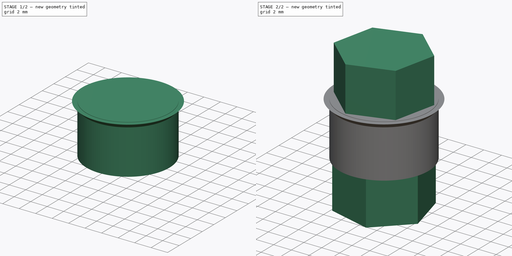
[diagram: build sequence overview — one tinted view per stage of 2, left to right]
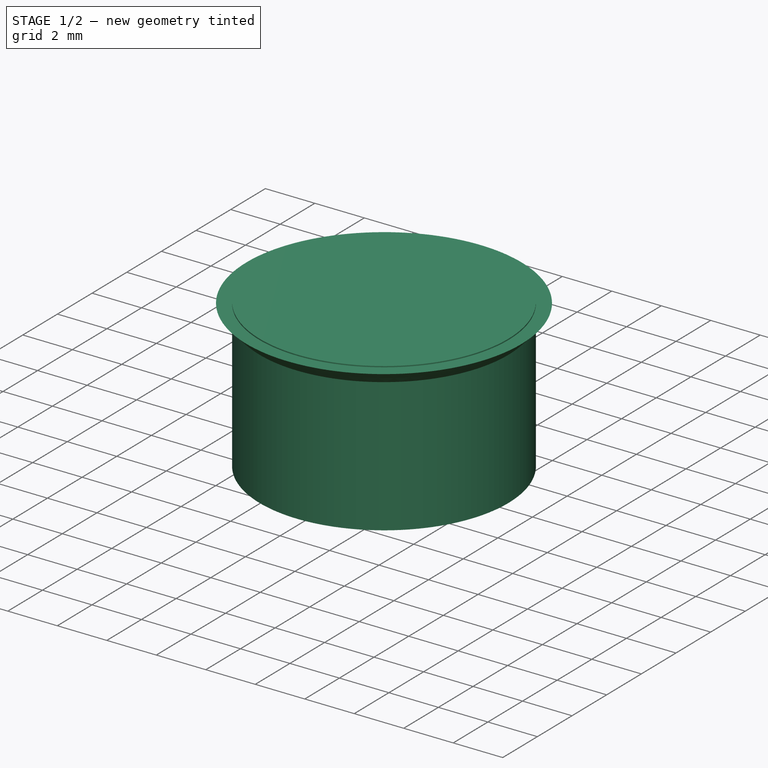
[diagram: stage 1 of 2 — iso view after this stage's code; geometry added in this stage tinted green]
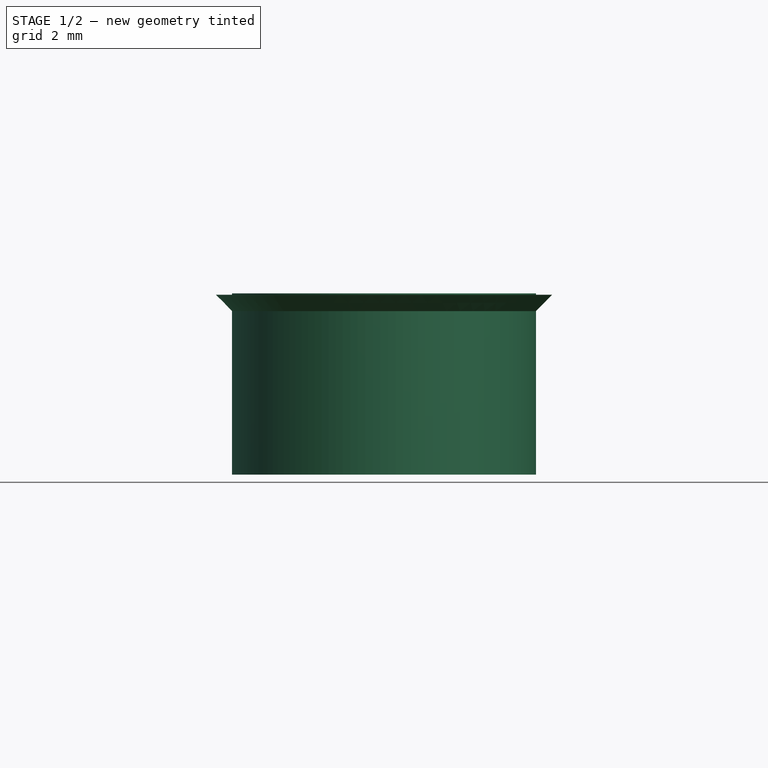
[diagram: stage 1 of 2 — front view after this stage's code; geometry added in this stage tinted green]
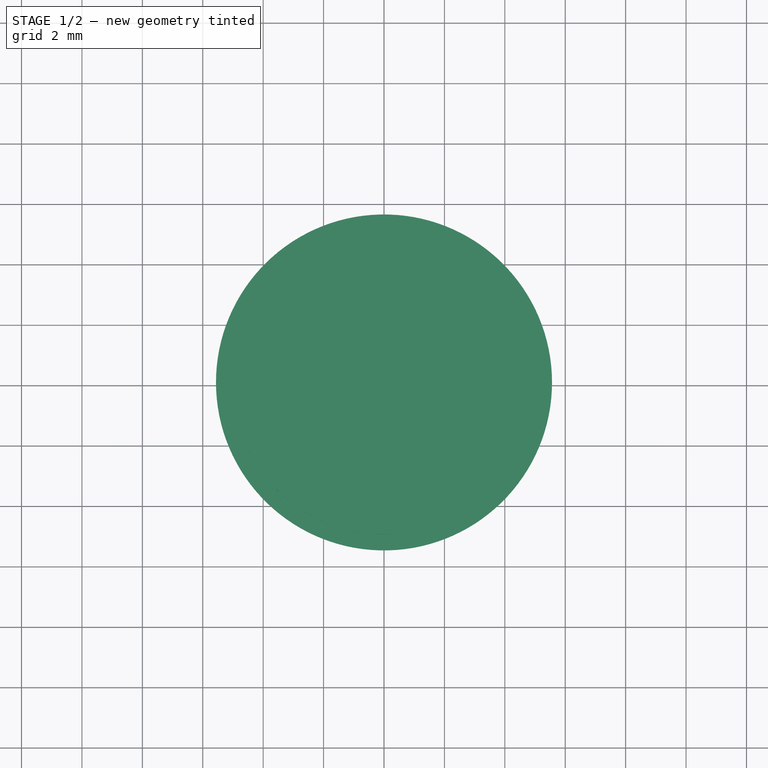
[diagram: stage 1 of 2 — top view after this stage's code; geometry added in this stage tinted green]
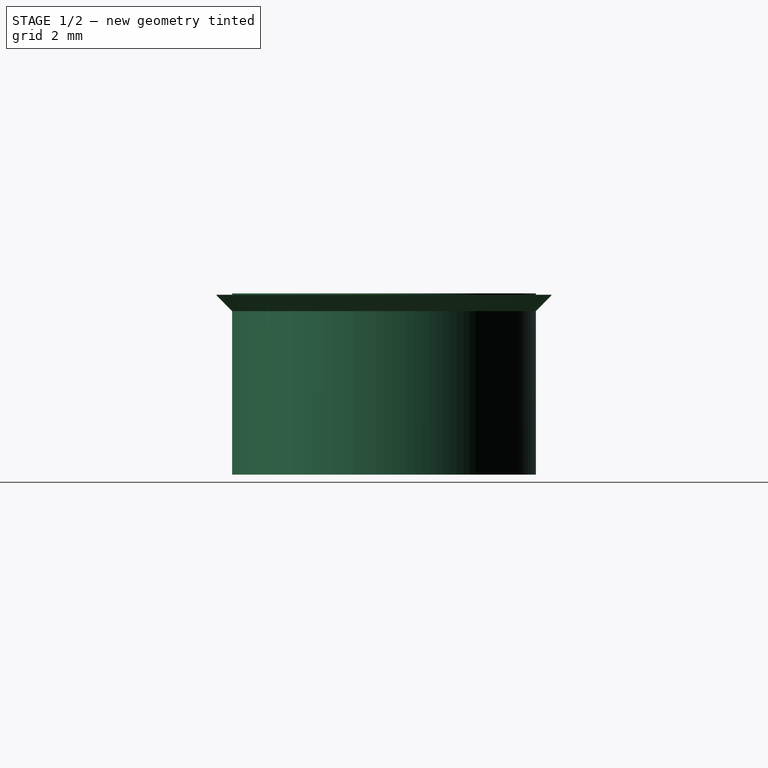
[diagram: stage 1 of 2 — right view after this stage's code; geometry added in this stage tinted green]
FCSTD DOCUMENT  (FreeCAD 0.20R29177 (Git))
Label: transmissionConnectShaft
License: All rights reserved
LicenseURL: http://en.wikipedia.org/wiki/All_rights_reserved
objects: Sketcher::SketchObject×4, PartDesign::Pad×3, Spreadsheet::Sheet×1, PartDesign::Revolution×1, PartDesign::Body×1
note: 13 computed .brp shape members not serialized (recipe doc carries the construction recipe); baked Part::Feature solids carry a one-line shape summary decoded from their .brp

FEATURE [Sketcher::SketchObject] Sketch
  FullyConstrained = true
  MapMode = 5
  Support = -> [XY_Plane]
  expr: Constraints[1] = Spreadsheet.shaftR
  sketch-geometry (1):
    g0: Circle CenterX=0 CenterY=0 CenterZ=0 NormalX=0 NormalY=0 NormalZ=1 AngleXU=0 Radius=5.03
  constraints (2):
    c: Coincident(g0,g-1)
    c: Radius(g0) = 5.03
FEATURE [Spreadsheet::Sheet] Spreadsheet
  cells = A2=shaftR; B2(shaftR)=5.03; A3=hexSocketMaleR; B3(hexSocketMaleR)=4.84; A4=hexSocketHeight; B4(hexSocketHeight)=5; A5=wallWidth; B5(wallWidth)=6
FEATURE [PartDesign::Pad] Pad
  Direction = (0,0,1)
  Length = 6
  Length2 = 10
  Profile = -> Sketch
  ReferenceAxis = -> Sketch [N_Axis]
  Type = 0
  expr: Length = Spreadsheet.wallWidth
FEATURE [Sketcher::SketchObject] Sketch001
  FullyConstrained = false
  MapMode = 5
  Placement = pos=(0,0,0) rot=(1,0,0;1.5708rad)
  Support = -> [XZ_Plane]
  sketch-geometry (3):
    g0: LineSegment StartX=4.824 StartY=5.954 StartZ=0 EndX=5.56212 EndY=5.954 EndZ=0
    g1: LineSegment StartX=5.56212 StartY=5.954 StartZ=0 EndX=4.824 EndY=5.204 EndZ=0
    g2: LineSegment StartX=4.824 StartY=5.204 StartZ=0 EndX=4.824 EndY=5.954 EndZ=0
  constraints (6):
    c: Horizontal(g0)
    c: Coincident(g1,g0)
    c: Coincident(g2,g1)
    c: Coincident(g2,g0)
    c: Vertical(g2)
    c: DistanceY(g2,g2) = 0.75
FEATURE [PartDesign::Revolution] Revolution
  Angle = 360
  Axis = (0,2e-16,1)
  Base = (0,0,0)
  BaseFeature = -> Pad
  Profile = -> Sketch001
  ReferenceAxis = -> Sketch001 [V_Axis]
  Reversed = true
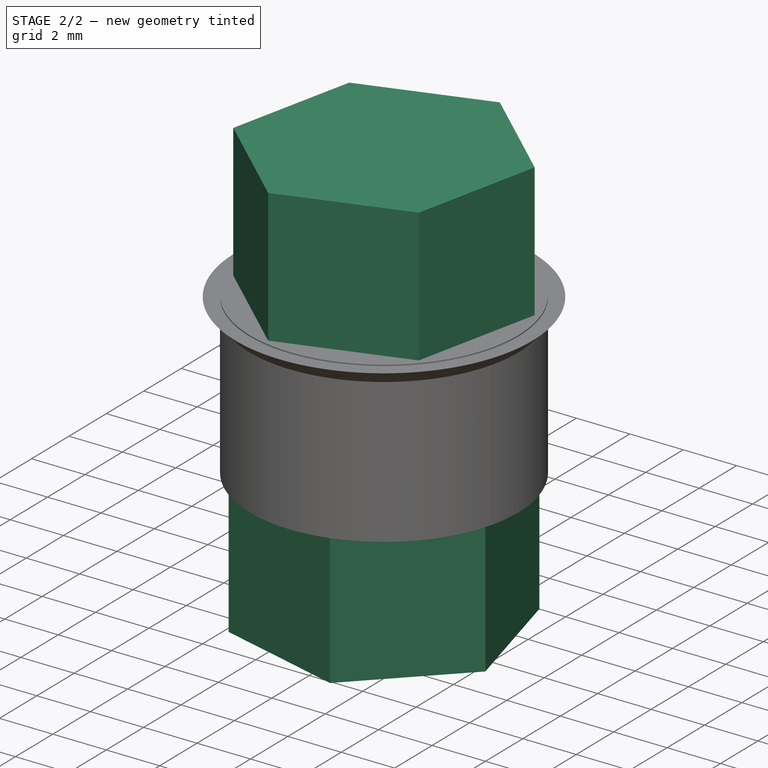
[diagram: stage 2 of 2 — iso view after this stage's code; geometry added in this stage tinted green]
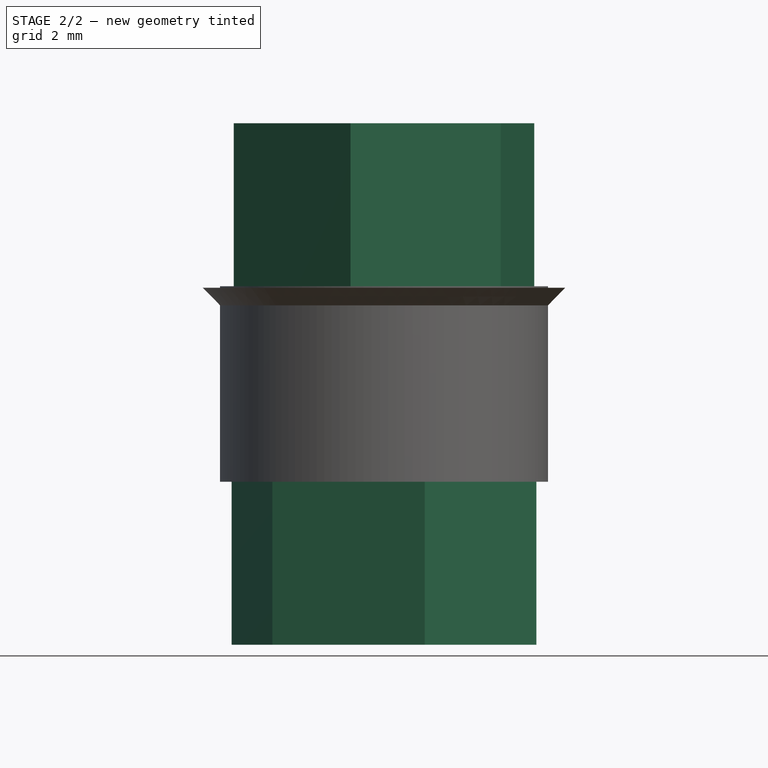
[diagram: stage 2 of 2 — front view after this stage's code; geometry added in this stage tinted green]
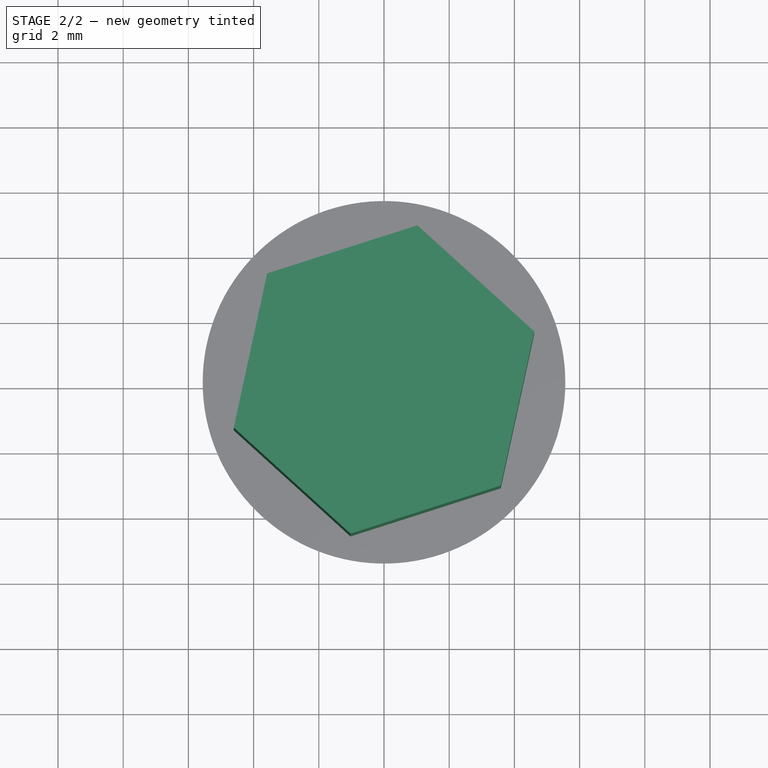
[diagram: stage 2 of 2 — top view after this stage's code; geometry added in this stage tinted green]
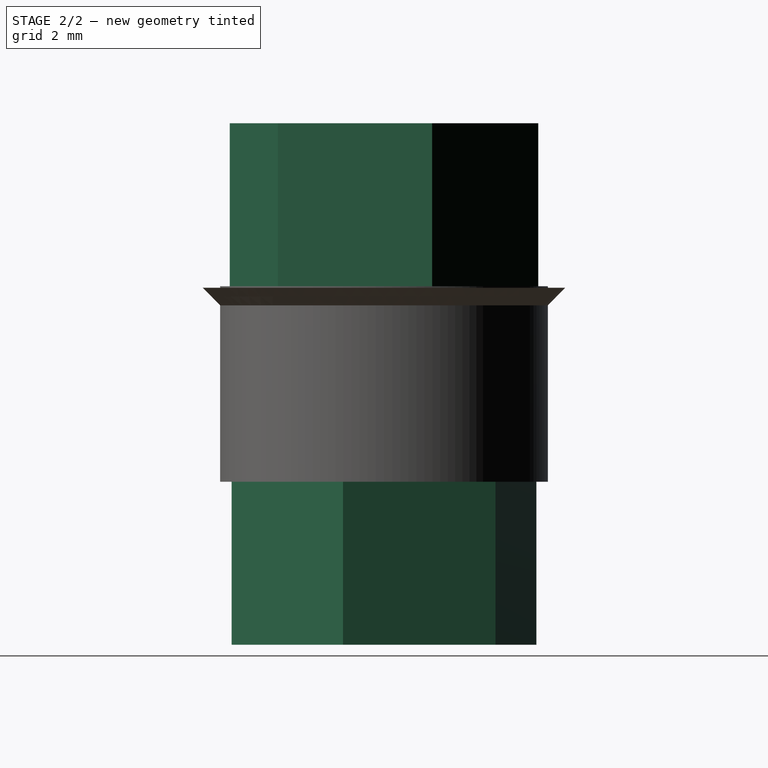
[diagram: stage 2 of 2 — right view after this stage's code; geometry added in this stage tinted green]
FEATURE [Sketcher::SketchObject] Sketch002
  FullyConstrained = false
  MapMode = 5
  Placement = pos=(0,0,6) rot=(0,0,1;0rad)
  Support = -> [Revolution]
  expr: Constraints[18] = Spreadsheet.hexSocketMaleR
  sketch-geometry (7):
    g0: LineSegment StartX=3.58303 StartY=-3.25384 StartZ=0 EndX=4.60943 EndY=1.47607 EndZ=0
    g1: LineSegment StartX=4.60943 StartY=1.47607 StartZ=0 EndX=1.0264 EndY=4.72992 EndZ=0
    g2: LineSegment StartX=1.0264 StartY=4.72992 StartZ=0 EndX=-3.58303 EndY=3.25384 EndZ=0
    g3: LineSegment StartX=-3.58303 StartY=3.25384 StartZ=0 EndX=-4.60943 EndY=-1.47607 EndZ=0
    g4: LineSegment StartX=-4.60943 StartY=-1.47607 StartZ=0 EndX=-1.0264 EndY=-4.72992 EndZ=0
    g5: LineSegment StartX=-1.0264 StartY=-4.72992 StartZ=0 EndX=3.58303 EndY=-3.25384 EndZ=0
    g6: Circle CenterX=0 CenterY=0 CenterZ=0 NormalX=0 NormalY=0 NormalZ=1 AngleXU=0 Radius=4.84
  constraints (15):
    c: Coincident(g0,g1)
    c: Coincident(g1,g2)
    c: Coincident(g2,g3)
    c: Coincident(g3,g4)
    c: Coincident(g4,g5)
    c: Coincident(g5,g0)
    c: Equal(g0, g1-g5) x5
    c: PointOnObject(g0,g6)
    c: PointOnObject(g1,g6)
    c: PointOnObject(g2,g6)
    c: PointOnObject(g3,g6)
    c: PointOnObject(g4,g6)
    c: PointOnObject(g5,g6)
    c: Coincident(g6,g-1)
    c: Radius(g6) = 4.84
FEATURE [PartDesign::Pad] Pad001
  BaseFeature = -> Revolution
  Direction = (0,0,1)
  Length = 5
  Length2 = 10
  Profile = -> Sketch002
  ReferenceAxis = -> Sketch002 [N_Axis]
  Type = 0
  expr: Length = Spreadsheet.hexSocketHeight
FEATURE [Sketcher::SketchObject] Sketch003
  FullyConstrained = false
  MapMode = 5
  Placement = pos=(0,0,0) rot=(1,0,0;3.14159rad)
  Support = -> [Pad001]
  expr: Constraints[18] = Spreadsheet.hexSocketMaleR
  sketch-geometry (7):
    g0: LineSegment StartX=3.42468 StartY=-3.42011 StartZ=0 EndX=4.67424 EndY=1.2558 EndZ=0
    g1: LineSegment StartX=4.67424 StartY=1.2558 StartZ=0 EndX=1.24957 EndY=4.67592 EndZ=0
    g2: LineSegment StartX=1.24957 StartY=4.67592 StartZ=0 EndX=-3.42468 EndY=3.42011 EndZ=0
    g3: LineSegment StartX=-3.42468 StartY=3.42011 StartZ=0 EndX=-4.67424 EndY=-1.2558 EndZ=0
    g4: LineSegment StartX=-4.67424 StartY=-1.2558 StartZ=0 EndX=-1.24957 EndY=-4.67592 EndZ=0
    g5: LineSegment StartX=-1.24957 StartY=-4.67592 StartZ=0 EndX=3.42468 EndY=-3.42011 EndZ=0
    g6: Circle CenterX=0 CenterY=0 CenterZ=0 NormalX=0 NormalY=0 NormalZ=1 AngleXU=0 Radius=4.84
  constraints (15):
    c: Coincident(g0,g1)
    c: Coincident(g1,g2)
    c: Coincident(g2,g3)
    c: Coincident(g3,g4)
    c: Coincident(g4,g5)
    c: Coincident(g5,g0)
    c: Equal(g0, g1-g5) x5
    c: PointOnObject(g0,g6)
    c: PointOnObject(g1,g6)
    c: PointOnObject(g2,g6)
    c: PointOnObject(g3,g6)
    c: PointOnObject(g4,g6)
    c: PointOnObject(g5,g6)
    c: Coincident(g6,g-1)
    c: Radius(g6) = 4.84
FEATURE [PartDesign::Pad] Pad002
  BaseFeature = -> Pad001
  Direction = (0,0,-1)
  Length = 5
  Length2 = 10
  Profile = -> Sketch003
  ReferenceAxis = -> Sketch003 [N_Axis]
  Type = 0
  expr: Length = Spreadsheet.hexSocketHeight
FEATURE [PartDesign::Body] Body
  Group = -> [Sketch,Pad,Sketch001,Revolution,Sketch002,Pad001,Sketch003,Pad002]
  Origin = -> Origin
  Tip = -> Pad002
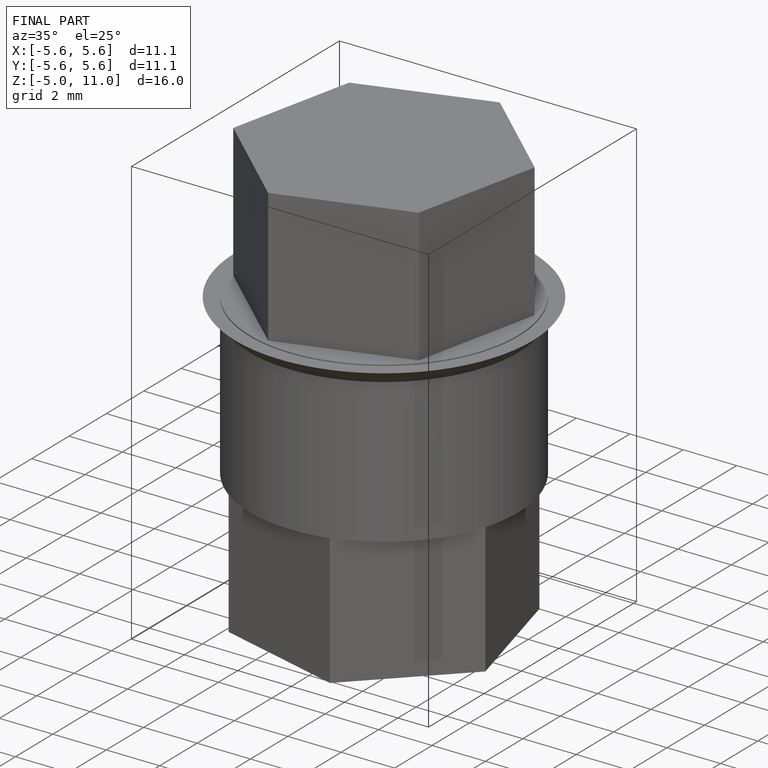
[diagram: finished part — iso view with bounding-box wireframe]
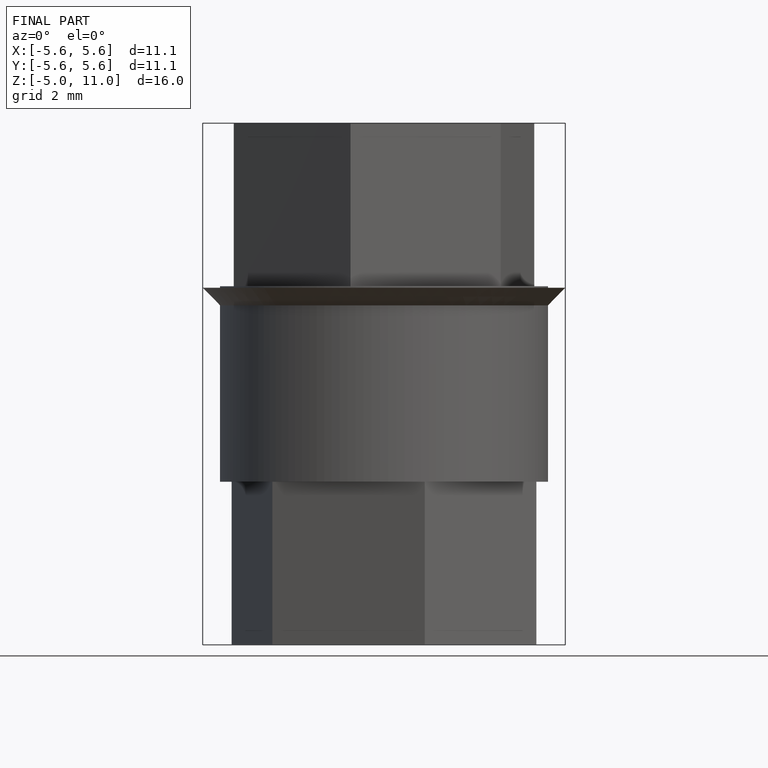
[diagram: finished part — front view with bounding-box wireframe]
